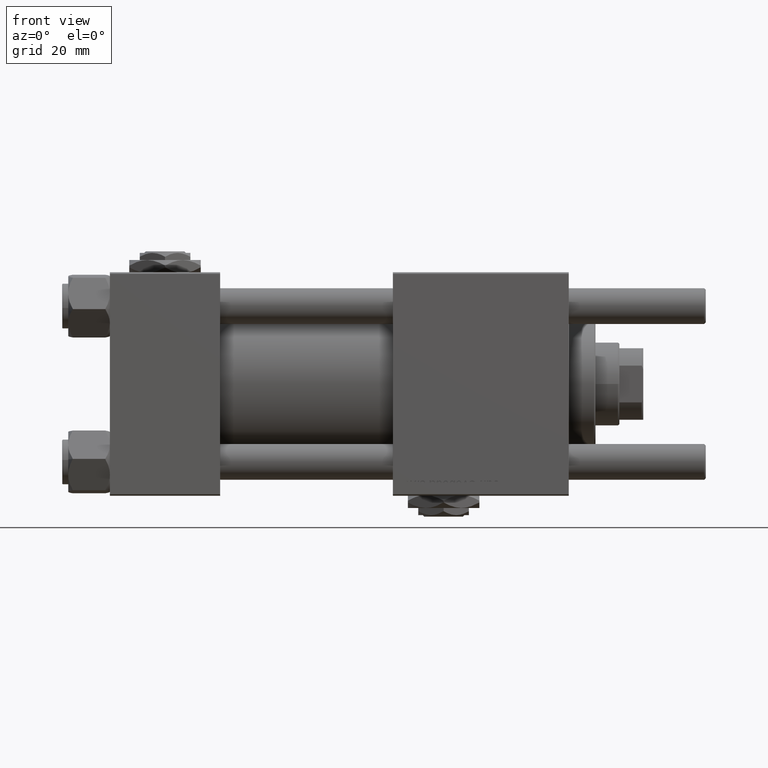
[diagram: clean part render]
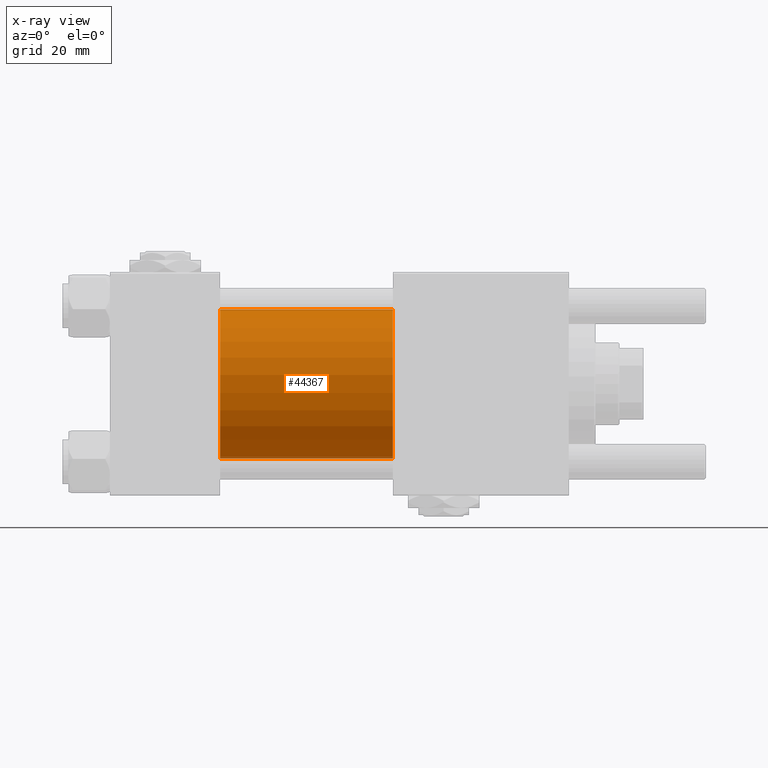
[diagram: x-ray — body ghosted, one internal face saturated and labeled with its STEP entity id]
A machine part, front view, then the same camera in x-ray: the body is ghosted and one INTERNAL B-rep face — a face not visible from any outside direction — is saturated and labeled: STEP entity #44367.
In plain terms, the highlighted cylindrical surface (partial cylindrical patch) has radius 25 mm, axis along (-1, -0, -0).
Its self-contained STEP definition (entity closure, byte-faithful):
#733 = ORIENTED_EDGE ( 'NONE', *, *, #52625, .F. ) ;
#2235 = VECTOR ( 'NONE', #37976, 1000.000000000000000 ) ;
#2297 = ORIENTED_EDGE ( 'NONE', *, *, #31002, .T. ) ;
#4652 = FACE_OUTER_BOUND ( 'NONE', #58380, .T. ) ;
#5552 = DIRECTION ( 'NONE',  ( -1.000000000000000000, -0.000000000000000000, -0.000000000000000000 ) ) ;
#5574 = CARTESIAN_POINT ( 'NONE',  ( 95.00000000000000000, -2.602085213965210642E-15, 25.00000000000000000 ) ) ;
#6224 = CARTESIAN_POINT ( 'NONE',  ( 37.00000000000000000, 4.595317839031718093E-16, -25.00000000000000000 ) ) ;
#9244 = CARTESIAN_POINT ( 'NONE',  ( 95.00000000000000000, -2.602085213965210642E-15, 0.000000000000000000 ) ) ;
#9753 = AXIS2_PLACEMENT_3D ( 'NONE', #16612, #11851, #53414 ) ;
#10335 = DIRECTION ( 'NONE',  ( -1.000000000000000000, -0.000000000000000000, -0.000000000000000000 ) ) ;
#11851 = DIRECTION ( 'NONE',  ( 1.000000000000000000, 0.000000000000000000, 0.000000000000000000 ) ) ;
#16612 = CARTESIAN_POINT ( 'NONE',  ( 37.00000000000000000, -2.602085213965210642E-15, 0.000000000000000000 ) ) ;
#17526 = CARTESIAN_POINT ( 'NONE',  ( 95.00000000000000000, 4.595317839031718093E-16, -25.00000000000000000 ) ) ;
#19241 = CARTESIAN_POINT ( 'NONE',  ( 95.00000000000000000, -2.602085213965210642E-15, 0.000000000000000000 ) ) ;
#19306 = CARTESIAN_POINT ( 'NONE',  ( 95.00000000000000000, 4.595317839031718093E-16, -25.00000000000000000 ) ) ;
#19870 = ORIENTED_EDGE ( 'NONE', *, *, #24927, .F. ) ;
#22254 = CARTESIAN_POINT ( 'NONE',  ( 37.00000000000000000, -2.602085213965210642E-15, 25.00000000000000000 ) ) ;
#24434 = AXIS2_PLACEMENT_3D ( 'NONE', #19241, #5552, #42065 ) ;
#24927 = EDGE_CURVE ( 'NONE', #36824, #47086, #58096, .T. ) ;
#25881 = CARTESIAN_POINT ( 'NONE',  ( 95.00000000000000000, -2.602085213965210642E-15, 25.00000000000000000 ) ) ;
#30205 = VECTOR ( 'NONE', #10335, 1000.000000000000000 ) ;
#31002 = EDGE_CURVE ( 'NONE', #52052, #46114, #35546, .T. ) ;
#34222 = EDGE_CURVE ( 'NONE', #46114, #47086, #42703, .T. ) ;
#34770 = ORIENTED_EDGE ( 'NONE', *, *, #34222, .T. ) ;
#35546 = CIRCLE ( 'NONE', #46935, 25.00000000000000000 ) ;
#36824 = VERTEX_POINT ( 'NONE', #22254 ) ;
#37976 = DIRECTION ( 'NONE',  ( -1.000000000000000000, -0.000000000000000000, -0.000000000000000000 ) ) ;
#42065 = DIRECTION ( 'NONE',  ( 0.000000000000000000, 0.000000000000000000, 1.000000000000000000 ) ) ;
#42703 = LINE ( 'NONE', #19306, #2235 ) ;
#44367 = ADVANCED_FACE ( 'NONE', ( #4652 ), #55430, .F. ) ;
#45471 = DIRECTION ( 'NONE',  ( 0.000000000000000000, 0.000000000000000000, -1.000000000000000000 ) ) ;
#46114 = VERTEX_POINT ( 'NONE', #17526 ) ;
#46857 = LINE ( 'NONE', #5574, #30205 ) ;
#46935 = AXIS2_PLACEMENT_3D ( 'NONE', #9244, #48760, #45471 ) ;
#47086 = VERTEX_POINT ( 'NONE', #6224 ) ;
#48760 = DIRECTION ( 'NONE',  ( 1.000000000000000000, 0.000000000000000000, 0.000000000000000000 ) ) ;
#52052 = VERTEX_POINT ( 'NONE', #25881 ) ;
#52625 = EDGE_CURVE ( 'NONE', #52052, #36824, #46857, .T. ) ;
#53414 = DIRECTION ( 'NONE',  ( 0.000000000000000000, 0.000000000000000000, -1.000000000000000000 ) ) ;
#55430 = CYLINDRICAL_SURFACE ( 'NONE', #24434, 25.00000000000000000 ) ;
#58096 = CIRCLE ( 'NONE', #9753, 25.00000000000000000 ) ;
#58380 = EDGE_LOOP ( 'NONE', ( #2297, #34770, #19870, #733 ) ) ;